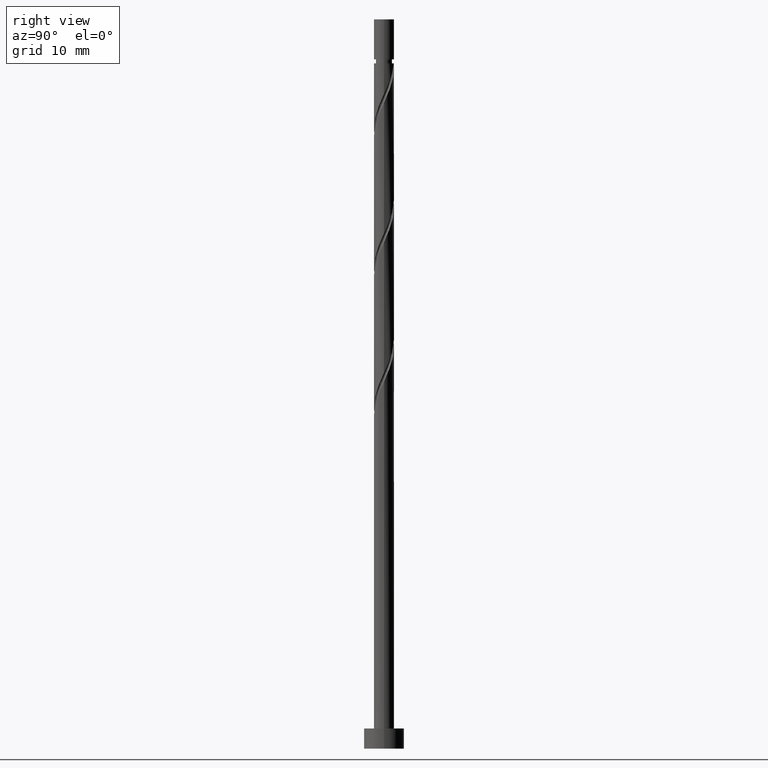
[diagram: clean part render]
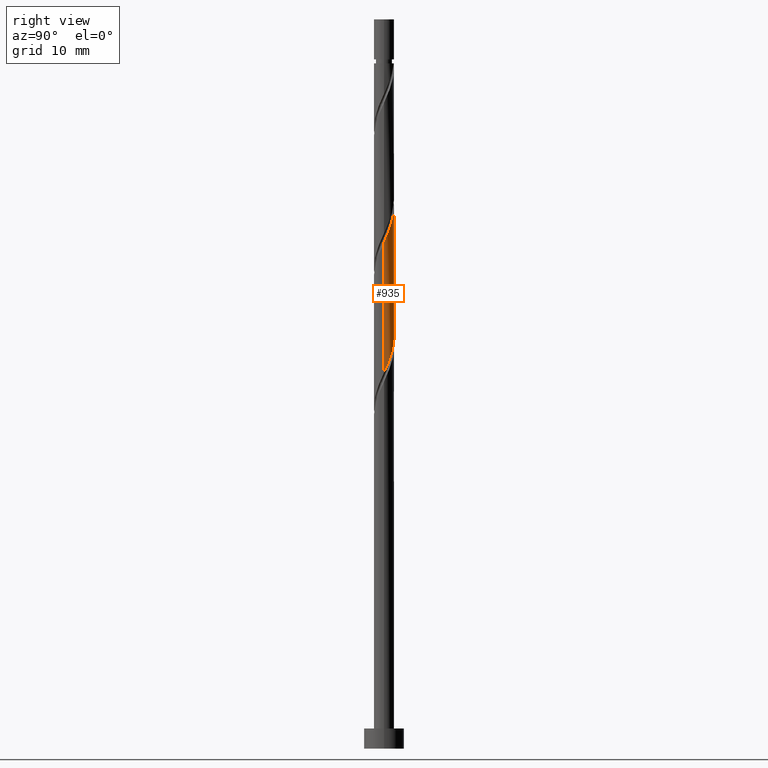
[diagram: same view with one face highlighted and labeled with its STEP entity id]
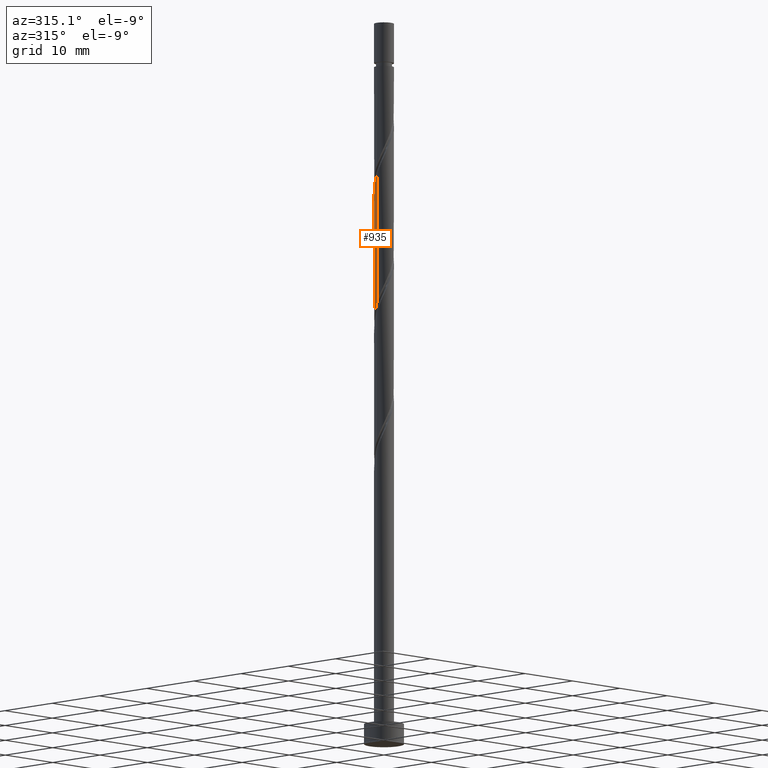
[diagram: same view with one face highlighted and labeled with its STEP entity id]
A machine part, right view. The second image highlights one B-rep face of the part: STEP entity #935.
A second angle (auxiliary view) of the same face is appended — the face is thin or edge-on in the first view.
In plain terms, the highlighted cylindrical surface (edge-blend (fillet) strip) has radius 1.5 mm, axis along (-0, -0, -1).
Its self-contained STEP definition (entity closure, byte-faithful):
#25 = CARTESIAN_POINT ( 'NONE',  ( -1.422722841493176960, 0.5313213584090544783, 65.42737568872664156 ) ) ;
#30 = CARTESIAN_POINT ( 'NONE',  ( 0.9449621764685305347, 1.188902500061262968, 59.17737568872663445 ) ) ;
#54 = CARTESIAN_POINT ( 'NONE',  ( 1.013803299206908148, 1.105532844612585830, 78.44820902205998436 ) ) ;
#63 = CARTESIAN_POINT ( 'NONE',  ( -0.7381417674387932282, 1.305812670777222184, 82.61487568872666998 ) ) ;
#71 = CARTESIAN_POINT ( 'NONE',  ( 1.305812670777222406, 0.7381417674387931172, 77.40654235539332717 ) ) ;
#115 = CARTESIAN_POINT ( 'NONE',  ( -1.500000000000000444, -2.571317127319803131E-15, 66.61301146353025615 ) ) ;
#127 = ORIENTED_EDGE ( 'NONE', *, *, #286, .F. ) ;
#145 = CARTESIAN_POINT ( 'NONE',  ( 1.105532844612584942, 1.013803299206906150, 58.65654235539334138 ) ) ;
#189 = CYLINDRICAL_SURFACE ( 'NONE', #1302, 1.500000000000000222 ) ;
#193 = CARTESIAN_POINT ( 'NONE',  ( -1.364706664255441737, 0.6225557971272878133, 84.69820902205999857 ) ) ;
#201 = CARTESIAN_POINT ( 'NONE',  ( -1.500000000000002665, 1.656737857544236133E-15, 86.11673991392305538 ) ) ;
#256 = VERTEX_POINT ( 'NONE', #1513 ) ;
#272 = CARTESIAN_POINT ( 'NONE',  ( -1.500000000000000444, -2.571317127319803131E-15, 66.61301146353025615 ) ) ;
#286 = EDGE_CURVE ( 'NONE', #1356, #377, #1416, .T. ) ;
#303 = CARTESIAN_POINT ( 'NONE',  ( 1.500000000000002442, 1.004537886474785654E-15, 75.70007324725638398 ) ) ;
#377 = VERTEX_POINT ( 'NONE', #1522 ) ;
#417 = CARTESIAN_POINT ( 'NONE',  ( 1.500000000000002887, 0.1507556722888801770, 76.03437782266419731 ) ) ;
#440 = CARTESIAN_POINT ( 'NONE',  ( 0.4064074959020251288, 1.463309815754243015, 80.01070902205998436 ) ) ;
#465 = ORIENTED_EDGE ( 'NONE', *, *, #889, .F. ) ;
#485 = DIRECTION ( 'NONE',  ( -0.000000000000000000, -0.000000000000000000, -1.000000000000000000 ) ) ;
#508 = CARTESIAN_POINT ( 'NONE',  ( -1.013803299206906372, 1.105532844612584720, 63.86487568872664866 ) ) ;
#554 = EDGE_CURVE ( 'NONE', #1356, #256, #1208, .T. ) ;
#555 = CARTESIAN_POINT ( 'NONE',  ( -1.266103512756640459, 0.8387040983525509974, 84.17737568872666998 ) ) ;
#561 = VERTEX_POINT ( 'NONE', #115 ) ;
#563 = CARTESIAN_POINT ( 'NONE',  ( -1.105532844612586052, 1.013803299206907926, 83.65654235539331296 ) ) ;
#611 = CARTESIAN_POINT ( 'NONE',  ( -0.1703681960235532977, 1.490293487130531780, 61.78154235539332007 ) ) ;
#619 =( BOUNDED_CURVE ( )  B_SPLINE_CURVE ( 2, ( #272, #1110, #643, #25, #973, #742, #508, #871, #751, #759, #611, #1482, #628, #1124, #1093, #30, #145, #990, #1473, #1349, #877, #766, #1488 ),
 .UNSPECIFIED., .F., .T. ) 
 B_SPLINE_CURVE_WITH_KNOTS ( ( 3, 2, 2, 2, 2, 2, 2, 2, 2, 2, 2, 3 ),
 ( 0.6795322023138551382, 0.6875000000000000000, 0.6999999999999999556, 0.7125000000000000222, 0.7249999999999999778, 0.7375000000000000444, 0.7500000000000000000, 0.7624999999999999556, 0.7750000000000000222, 0.7874999999999999778, 0.8000000000000000444, 0.8045322023138551382 ),
 .UNSPECIFIED. ) 
 CURVE ( )  GEOMETRIC_REPRESENTATION_ITEM ( )  RATIONAL_B_SPLINE_CURVE ( ( 0.9039174447099322940, 0.9019565955404615920, 0.9090909090909099488, 0.8978984914501261239, 0.9090909090909099488, 0.8978984914501261239, 0.9090909090909099488, 0.8978984914501261239, 0.9090909090909099488, 0.8978984914501261239, 0.9090909090909099488, 0.8978984914501261239, 0.9090909090909099488, 0.8978984914501261239, 0.9090909090909099488, 0.8978984914501261239, 0.9090909090909099488, 0.8978984914501261239, 0.9090909090909099488, 0.8978984914501261239, 0.9090909090909099488, 0.9050328050005744807, 0.9039174447099322940 ) ) 
 REPRESENTATION_ITEM ( '' )  );
#628 = CARTESIAN_POINT ( 'NONE',  ( 0.2984962311319863670, 1.470000000000000639, 60.73987568872664866 ) ) ;
#643 = CARTESIAN_POINT ( 'NONE',  ( -1.470000000000000639, 0.2984962311319860895, 65.94820902205998436 ) ) ;
#669 = FACE_OUTER_BOUND ( 'NONE', #1372, .T. ) ;
#681 = CARTESIAN_POINT ( 'NONE',  ( 0.8387040983525509974, 1.266103512756640015, 78.96904235539331296 ) ) ;
#691 = CARTESIAN_POINT ( 'NONE',  ( -1.490293487130534222, 0.1703681960235538528, 85.73987568872666998 ) ) ;
#742 = CARTESIAN_POINT ( 'NONE',  ( -1.188902500061262968, 0.9449621764685303127, 64.38570902205998436 ) ) ;
#751 = CARTESIAN_POINT ( 'NONE',  ( -0.6225557971272870361, 1.364706664255440183, 62.82320902205999857 ) ) ;
#759 = CARTESIAN_POINT ( 'NONE',  ( -0.4064074959020240740, 1.463309815754240351, 62.30237568872664866 ) ) ;
#766 = CARTESIAN_POINT ( 'NONE',  ( 1.500000000000000222, 0.08546060616965046874, 56.38585588607087118 ) ) ;
#777 = CARTESIAN_POINT ( 'NONE',  ( -1.500000000000000222, 0.000000000000000000, 108.9800000000000040 ) ) ;
#794 = DIRECTION ( 'NONE',  ( -0.000000000000000000, -0.000000000000000000, -1.000000000000000000 ) ) ;
#798 = EDGE_CURVE ( 'NONE', #561, #256, #619, .T. ) ;
#804 = CARTESIAN_POINT ( 'NONE',  ( -0.9449621764685313119, 1.188902500061264744, 83.13570902205997015 ) ) ;
#813 = CARTESIAN_POINT ( 'NONE',  ( -1.463309815754242571, 0.4064074959020249067, 85.21904235539331296 ) ) ;
#871 = CARTESIAN_POINT ( 'NONE',  ( -0.8387040983525495541, 1.266103512756638905, 63.34404235539332717 ) ) ;
#877 = CARTESIAN_POINT ( 'NONE',  ( 1.490293487130532224, 0.1703681960235530202, 56.57320902205999147 ) ) ;
#889 = EDGE_CURVE ( 'NONE', #377, #561, #1014, .T. ) ;
#908 = CARTESIAN_POINT ( 'NONE',  ( 1.470000000000002860, 0.2984962311319858674, 76.36487568872665577 ) ) ;
#924 = CARTESIAN_POINT ( 'NONE',  ( 1.422722841493179402, 0.5313213584090544783, 76.88570902205998436 ) ) ;
#935 = ADVANCED_FACE ( 'NONE', ( #669 ), #189, .T. ) ;
#973 = CARTESIAN_POINT ( 'NONE',  ( -1.305812670777220186, 0.7381417674387924510, 64.90654235539331296 ) ) ;
#990 = CARTESIAN_POINT ( 'NONE',  ( 1.266103512756638905, 0.8387040983525493321, 58.13570902205996305 ) ) ;
#1014 = LINE ( 'NONE', #777, #1256 ) ;
#1031 = CARTESIAN_POINT ( 'NONE',  ( -0.2984962311319857564, 1.470000000000002860, 81.57320902205998436 ) ) ;
#1093 = CARTESIAN_POINT ( 'NONE',  ( 0.7381417674387928951, 1.305812670777220186, 59.69820902205997726 ) ) ;
#1110 = CARTESIAN_POINT ( 'NONE',  ( -1.500000000000000444, 0.1507556722888805378, 66.27870688812240019 ) ) ;
#1122 = CARTESIAN_POINT ( 'NONE',  ( 1.500000000000002442, 1.004537886474785654E-15, 75.70007324725638398 ) ) ;
#1124 = CARTESIAN_POINT ( 'NONE',  ( 0.5313213584090547004, 1.422722841493176515, 60.21904235539330585 ) ) ;
#1156 = CARTESIAN_POINT ( 'NONE',  ( -0.06567110385491700675, 1.517277158506825430, 81.05237568872662735 ) ) ;
#1164 = CARTESIAN_POINT ( 'NONE',  ( -1.500000000000002220, 0.08546060616964906709, 85.92722882471578316 ) ) ;
#1208 = LINE ( 'NONE', #1569, #1535 ) ;
#1251 = CARTESIAN_POINT ( 'NONE',  ( 0.000000000000000000, 0.000000000000000000, 108.9800000000000040 ) ) ;
#1256 = VECTOR ( 'NONE', #794, 1000.000000000000000 ) ;
#1270 = DIRECTION ( 'NONE',  ( -0.000000000000000000, -0.000000000000000000, -1.000000000000000000 ) ) ;
#1280 = CARTESIAN_POINT ( 'NONE',  ( 0.1703681960235541304, 1.490293487130534222, 80.53154235539332717 ) ) ;
#1288 = CARTESIAN_POINT ( 'NONE',  ( 0.6225557971272883684, 1.364706664255441293, 79.48987568872665577 ) ) ;
#1302 = AXIS2_PLACEMENT_3D ( 'NONE', #1251, #1270, #1389 ) ;
#1324 = ORIENTED_EDGE ( 'NONE', *, *, #554, .T. ) ;
#1349 = CARTESIAN_POINT ( 'NONE',  ( 1.463309815754240573, 0.4064074959020239630, 57.09404235539332007 ) ) ;
#1356 = VERTEX_POINT ( 'NONE', #1122 ) ;
#1372 = EDGE_LOOP ( 'NONE', ( #127, #1324, #1472, #465 ) ) ;
#1389 = DIRECTION ( 'NONE',  ( -1.000000000000000000, 0.000000000000000000, 0.000000000000000000 ) ) ;
#1400 = CARTESIAN_POINT ( 'NONE',  ( -0.5313213584090548114, 1.422722841493179402, 82.09404235539331296 ) ) ;
#1416 =( BOUNDED_CURVE ( )  B_SPLINE_CURVE ( 2, ( #303, #417, #908, #924, #71, #1529, #54, #681, #1288, #440, #1280, #1156, #1031, #1400, #63, #804, #563, #555, #193, #813, #691, #1164, #201 ),
 .UNSPECIFIED., .F., .T. ) 
 B_SPLINE_CURVE_WITH_KNOTS ( ( 3, 2, 2, 2, 2, 2, 2, 2, 2, 2, 2, 3 ),
 ( 0.4295322023138551382, 0.4375000000000000000, 0.4499999999999999556, 0.4625000000000000222, 0.4749999999999999778, 0.4875000000000000444, 0.5000000000000000000, 0.5124999999999999556, 0.5250000000000000222, 0.5374999999999999778, 0.5500000000000000444, 0.5545322023138552492 ),
 .UNSPECIFIED. ) 
 CURVE ( )  GEOMETRIC_REPRESENTATION_ITEM ( )  RATIONAL_B_SPLINE_CURVE ( ( 0.9039174447099378451, 0.9019565955404671431, 0.9090909090909156109, 0.8978984914501316750, 0.9090909090909156109, 0.8978984914501316750, 0.9090909090909156109, 0.8978984914501316750, 0.9090909090909156109, 0.8978984914501316750, 0.9090909090909156109, 0.8978984914501316750, 0.9090909090909156109, 0.8978984914501316750, 0.9090909090909156109, 0.8978984914501316750, 0.9090909090909156109, 0.8978984914501316750, 0.9090909090909156109, 0.8978984914501316750, 0.9090909090909156109, 0.9050328050005800318, 0.9039174447099378451 ) ) 
 REPRESENTATION_ITEM ( '' )  );
#1472 = ORIENTED_EDGE ( 'NONE', *, *, #798, .F. ) ;
#1473 = CARTESIAN_POINT ( 'NONE',  ( 1.364706664255440183, 0.6225557971272865920, 57.61487568872666287 ) ) ;
#1482 = CARTESIAN_POINT ( 'NONE',  ( 0.06567110385491756186, 1.517277158506823431, 61.26070902205997726 ) ) ;
#1488 = CARTESIAN_POINT ( 'NONE',  ( 1.500000000000000888, -1.791675782593099320E-15, 56.19634479686358475 ) ) ;
#1513 = CARTESIAN_POINT ( 'NONE',  ( 1.500000000000000888, -1.791675782593099320E-15, 56.19634479686358475 ) ) ;
#1522 = CARTESIAN_POINT ( 'NONE',  ( -1.500000000000002665, 1.656737857544236133E-15, 86.11673991392305538 ) ) ;
#1529 = CARTESIAN_POINT ( 'NONE',  ( 1.188902500061265188, 0.9449621764685313119, 77.92737568872665577 ) ) ;
#1535 = VECTOR ( 'NONE', #485, 1000.000000000000000 ) ;
#1569 = CARTESIAN_POINT ( 'NONE',  ( 1.500000000000000222, 1.836970198721030181E-16, 108.9800000000000040 ) ) ;